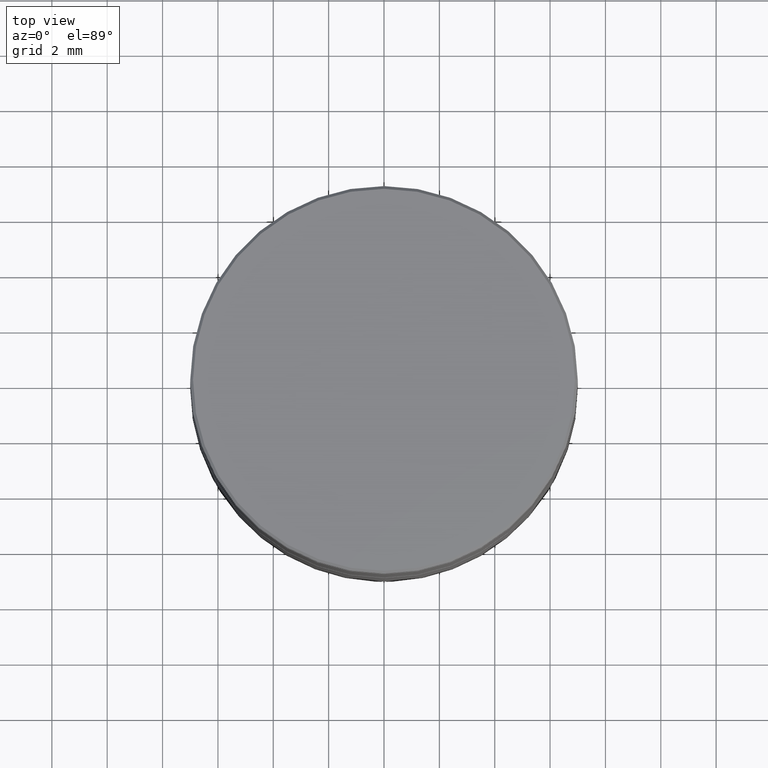
[diagram: clean part render]
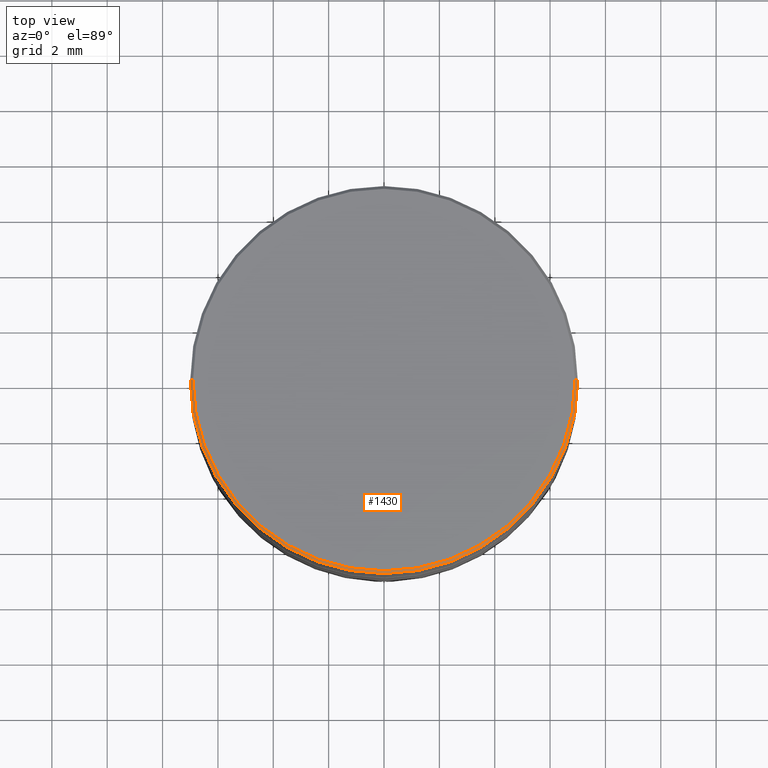
[diagram: same view with one face highlighted and labeled with its STEP entity id]
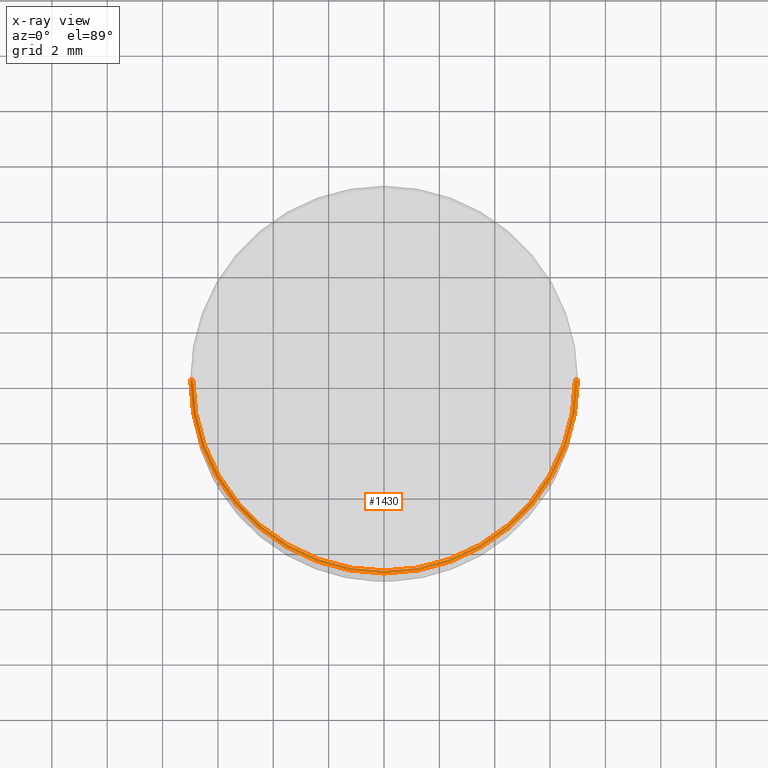
[diagram: x-ray of the same camera — body ghosted, the highlighted face saturated]
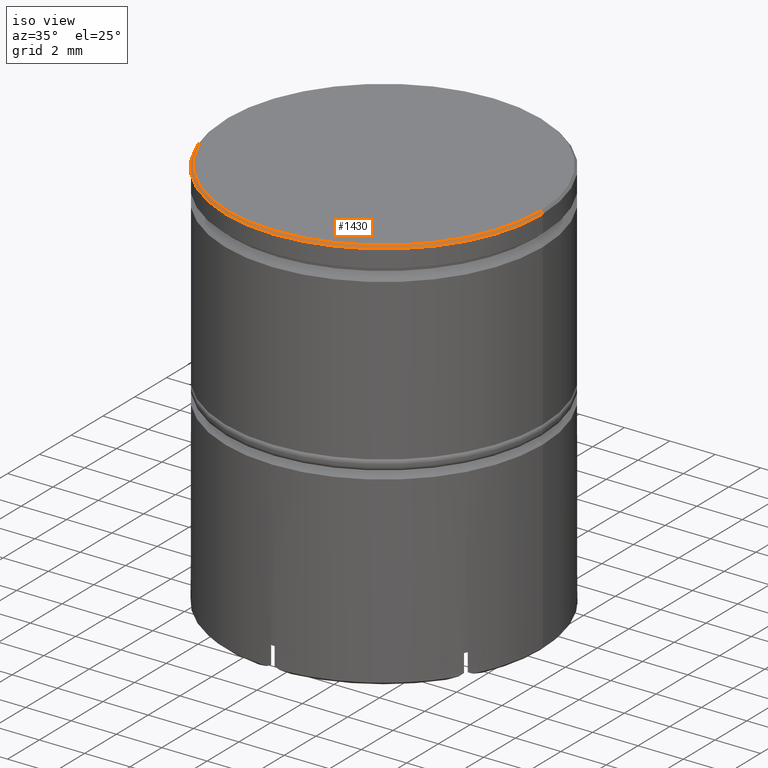
[diagram: same view with one face highlighted and labeled with its STEP entity id]
A machine part, top view. The second image highlights one B-rep face of the part: STEP entity #1430.
The next image is the same camera in x-ray: the body ghosted, the highlighted face saturated — about 0% of this face is hidden behind the body in this view.
A second angle (iso view) of the same face is appended — the face is thin or edge-on in the first view.
In plain terms, the highlighted conical surface has half-angle 45 deg.
Its self-contained STEP definition (entity closure, byte-faithful):
#3 = VECTOR ( 'NONE', #1394, 1000.000000000000114 ) ;
#97 = CARTESIAN_POINT ( 'NONE',  ( 6.899999999999999467, 8.511295254074105418E-16, 0.000000000000000000 ) ) ;
#175 = EDGE_CURVE ( 'NONE', #1593, #1217, #1359, .T. ) ;
#205 = DIRECTION ( 'NONE',  ( 1.000000000000000000, 0.000000000000000000, 0.000000000000000000 ) ) ;
#232 = FACE_OUTER_BOUND ( 'NONE', #1302, .T. ) ;
#281 = EDGE_CURVE ( 'NONE', #1199, #1593, #512, .T. ) ;
#353 = EDGE_CURVE ( 'NONE', #441, #1217, #1167, .T. ) ;
#400 = AXIS2_PLACEMENT_3D ( 'NONE', #761, #477, #1616 ) ;
#428 = AXIS2_PLACEMENT_3D ( 'NONE', #1284, #1300, #1534 ) ;
#441 = VERTEX_POINT ( 'NONE', #1578 ) ;
#477 = DIRECTION ( 'NONE',  ( 0.000000000000000000, 0.000000000000000000, -1.000000000000000000 ) ) ;
#512 = LINE ( 'NONE', #520, #3 ) ;
#520 = CARTESIAN_POINT ( 'NONE',  ( 6.899999999999999467, 8.450062914116736661E-16, 0.000000000000000000 ) ) ;
#653 = CARTESIAN_POINT ( 'NONE',  ( -6.899999999999999467, 0.000000000000000000, 0.000000000000000000 ) ) ;
#732 = CARTESIAN_POINT ( 'NONE',  ( -7.000000000000000888, 8.572527594031474176E-16, -0.1000000000000011297 ) ) ;
#761 = CARTESIAN_POINT ( 'NONE',  ( 0.000000000000000000, 0.000000000000000000, 0.000000000000000000 ) ) ;
#882 = CONICAL_SURFACE ( 'NONE', #400, 6.899999999999999467, 0.7853981633974482790 ) ;
#945 = CARTESIAN_POINT ( 'NONE',  ( 0.000000000000000000, 0.000000000000000000, -0.1000000000000011297 ) ) ;
#956 = DIRECTION ( 'NONE',  ( 0.000000000000000000, 0.000000000000000000, -1.000000000000000000 ) ) ;
#980 = VECTOR ( 'NONE', #1143, 1000.000000000000114 ) ;
#1121 = EDGE_CURVE ( 'NONE', #441, #1199, #1190, .T. ) ;
#1143 = DIRECTION ( 'NONE',  ( -0.7071067811865474617, 0.000000000000000000, -0.7071067811865474617 ) ) ;
#1167 = LINE ( 'NONE', #653, #980 ) ;
#1190 = CIRCLE ( 'NONE', #428, 6.899999999999999467 ) ;
#1199 = VERTEX_POINT ( 'NONE', #97 ) ;
#1217 = VERTEX_POINT ( 'NONE', #732 ) ;
#1226 = AXIS2_PLACEMENT_3D ( 'NONE', #945, #956, #205 ) ;
#1284 = CARTESIAN_POINT ( 'NONE',  ( 0.000000000000000000, 0.000000000000000000, 0.000000000000000000 ) ) ;
#1300 = DIRECTION ( 'NONE',  ( -0.000000000000000000, -0.000000000000000000, 1.000000000000000000 ) ) ;
#1302 = EDGE_LOOP ( 'NONE', ( #1322, #1348, #1438, #1587 ) ) ;
#1322 = ORIENTED_EDGE ( 'NONE', *, *, #281, .F. ) ;
#1348 = ORIENTED_EDGE ( 'NONE', *, *, #1121, .F. ) ;
#1359 = CIRCLE ( 'NONE', #1226, 7.000000000000000888 ) ;
#1394 = DIRECTION ( 'NONE',  ( 0.7071067811865474617, 8.659560562354932858E-17, -0.7071067811865474617 ) ) ;
#1416 = CARTESIAN_POINT ( 'NONE',  ( 7.000000000000000888, 0.000000000000000000, -0.1000000000000011297 ) ) ;
#1430 = ADVANCED_FACE ( 'NONE', ( #232 ), #882, .T. ) ;
#1438 = ORIENTED_EDGE ( 'NONE', *, *, #353, .T. ) ;
#1534 = DIRECTION ( 'NONE',  ( 1.000000000000000000, 0.000000000000000000, 0.000000000000000000 ) ) ;
#1578 = CARTESIAN_POINT ( 'NONE',  ( -6.899999999999999467, 0.000000000000000000, 0.000000000000000000 ) ) ;
#1587 = ORIENTED_EDGE ( 'NONE', *, *, #175, .F. ) ;
#1593 = VERTEX_POINT ( 'NONE', #1416 ) ;
#1616 = DIRECTION ( 'NONE',  ( -1.000000000000000000, 0.000000000000000000, 0.000000000000000000 ) ) ;